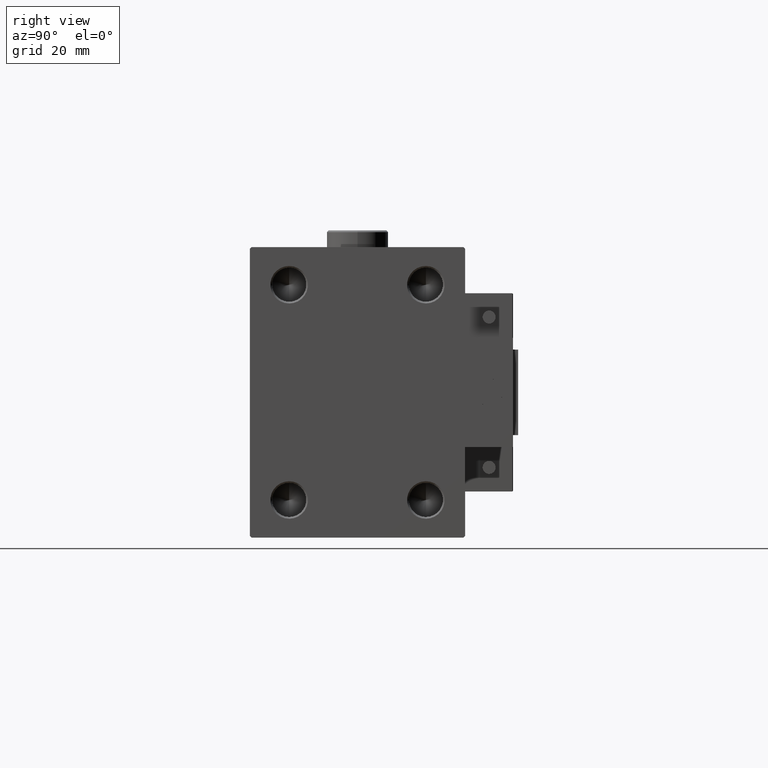
[diagram: clean part render]
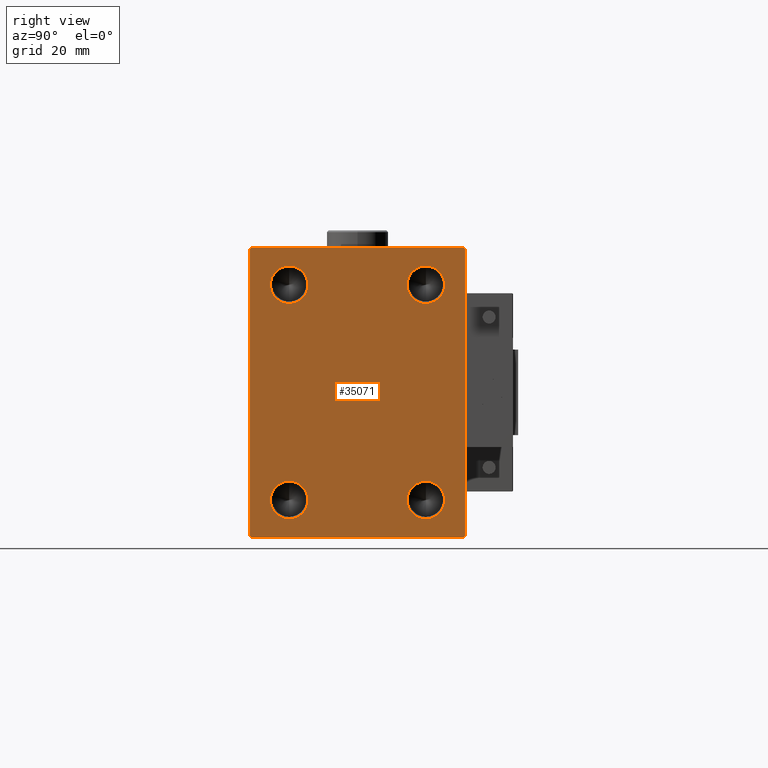
[diagram: same view with one face highlighted and labeled with its STEP entity id]
A machine part, right view. The second image highlights one B-rep face of the part: STEP entity #35071.
In plain terms, the highlighted planar face has unit normal (1, 0, 0).
Its self-contained STEP definition (entity closure, byte-faithful):
#543 = AXIS2_PLACEMENT_3D ( 'NONE', #50012, #1362, #25278 ) ;
#1117 = CARTESIAN_POINT ( 'NONE',  ( 103.0000000000000000, 36.74999999999956657, 36.75000000000058975 ) ) ;
#1249 = DIRECTION ( 'NONE',  ( 1.000000000000000000, -0.000000000000000000, -0.000000000000000000 ) ) ;
#1325 = VERTEX_POINT ( 'NONE', #2756 ) ;
#1362 = DIRECTION ( 'NONE',  ( 1.000000000000000000, -0.000000000000000000, -0.000000000000000000 ) ) ;
#1946 = EDGE_CURVE ( 'NONE', #5801, #2545, #4513, .T. ) ;
#2475 = DIRECTION ( 'NONE',  ( 1.000000000000000000, -0.000000000000000000, -0.000000000000000000 ) ) ;
#2545 = VERTEX_POINT ( 'NONE', #17121 ) ;
#2594 = FACE_BOUND ( 'NONE', #37675, .T. ) ;
#2659 = CARTESIAN_POINT ( 'NONE',  ( 103.0000000000000000, 31.50000000000001421, -42.00000000000000711 ) ) ;
#2756 = CARTESIAN_POINT ( 'NONE',  ( 103.0000000000000000, -31.50000000000000000, -42.00000000000002842 ) ) ;
#3054 = VECTOR ( 'NONE', #31547, 1000.000000000000114 ) ;
#3083 = AXIS2_PLACEMENT_3D ( 'NONE', #20191, #31618, #48619 ) ;
#3163 = DIRECTION ( 'NONE',  ( 1.000000000000000000, -0.000000000000000000, -0.000000000000000000 ) ) ;
#3430 = EDGE_CURVE ( 'NONE', #24256, #23770, #26184, .T. ) ;
#3701 = VECTOR ( 'NONE', #33518, 1000.000000000000000 ) ;
#4019 = CIRCLE ( 'NONE', #30351, 5.499999999999991118 ) ;
#4513 = CIRCLE ( 'NONE', #39322, 5.499999999999991118 ) ;
#4854 = VERTEX_POINT ( 'NONE', #44079 ) ;
#5320 = CARTESIAN_POINT ( 'NONE',  ( 103.0000000000000000, -36.74999999999936051, -36.75000000000088818 ) ) ;
#5801 = VERTEX_POINT ( 'NONE', #23597 ) ;
#6360 = ORIENTED_EDGE ( 'NONE', *, *, #1946, .F. ) ;
#6380 = DIRECTION ( 'NONE',  ( 0.000000000000000000, -1.632680918566406547E-16, 1.000000000000000000 ) ) ;
#6455 = DIRECTION ( 'NONE',  ( 0.000000000000000000, 0.000000000000000000, -1.000000000000000000 ) ) ;
#6799 = VERTEX_POINT ( 'NONE', #31096 ) ;
#7083 = EDGE_CURVE ( 'NONE', #50405, #48186, #35790, .T. ) ;
#7343 = DIRECTION ( 'NONE',  ( 0.000000000000000000, 0.000000000000000000, -1.000000000000000000 ) ) ;
#7701 = EDGE_CURVE ( 'NONE', #50673, #4854, #25103, .T. ) ;
#8054 = EDGE_CURVE ( 'NONE', #11153, #6799, #49742, .T. ) ;
#8518 = CARTESIAN_POINT ( 'NONE',  ( 103.0000000000000000, 31.00000000000000000, 42.49999999999999289 ) ) ;
#8686 = CARTESIAN_POINT ( 'NONE',  ( 103.0000000000000000, 19.99999999999999645, -31.50000000000000000 ) ) ;
#8754 = DIRECTION ( 'NONE',  ( 0.000000000000000000, 0.000000000000000000, -1.000000000000000000 ) ) ;
#8792 = EDGE_CURVE ( 'NONE', #48186, #1325, #17995, .T. ) ;
#9476 = DIRECTION ( 'NONE',  ( 0.000000000000000000, 0.000000000000000000, -1.000000000000000000 ) ) ;
#9887 = ORIENTED_EDGE ( 'NONE', *, *, #11268, .F. ) ;
#10059 = ORIENTED_EDGE ( 'NONE', *, *, #15172, .T. ) ;
#10256 = VERTEX_POINT ( 'NONE', #8518 ) ;
#10597 = CARTESIAN_POINT ( 'NONE',  ( 103.0000000000000000, 19.99999999999999645, 31.50000000000000000 ) ) ;
#10810 = FACE_OUTER_BOUND ( 'NONE', #48683, .T. ) ;
#11069 = FACE_BOUND ( 'NONE', #41954, .T. ) ;
#11153 = VERTEX_POINT ( 'NONE', #49519 ) ;
#11268 = EDGE_CURVE ( 'NONE', #43063, #33478, #4019, .T. ) ;
#11319 = FACE_BOUND ( 'NONE', #33620, .T. ) ;
#12361 = VERTEX_POINT ( 'NONE', #2659 ) ;
#12476 = AXIS2_PLACEMENT_3D ( 'NONE', #27529, #43758, #7343 ) ;
#12695 = EDGE_LOOP ( 'NONE', ( #30325, #40603 ) ) ;
#12892 = VERTEX_POINT ( 'NONE', #37262 ) ;
#13013 = LINE ( 'NONE', #45732, #51613 ) ;
#13530 = VECTOR ( 'NONE', #18551, 1000.000000000000000 ) ;
#14574 = DIRECTION ( 'NONE',  ( 0.000000000000000000, 0.000000000000000000, -1.000000000000000000 ) ) ;
#15172 = EDGE_CURVE ( 'NONE', #10256, #50405, #13013, .T. ) ;
#15480 = AXIS2_PLACEMENT_3D ( 'NONE', #20082, #44039, #23823 ) ;
#17121 = CARTESIAN_POINT ( 'NONE',  ( 103.0000000000000000, 19.99999999999999645, 36.99999999999999289 ) ) ;
#17290 = DIRECTION ( 'NONE',  ( 0.000000000000000000, 0.000000000000000000, -1.000000000000000000 ) ) ;
#17311 = EDGE_CURVE ( 'NONE', #2545, #5801, #36350, .T. ) ;
#17615 = CARTESIAN_POINT ( 'NONE',  ( 103.0000000000000000, -20.00000000000000355, 31.50000000000000000 ) ) ;
#17631 = CARTESIAN_POINT ( 'NONE',  ( 103.0000000000000000, 31.00000000000002842, -42.50000000000000711 ) ) ;
#17995 = LINE ( 'NONE', #34456, #33625 ) ;
#18551 = DIRECTION ( 'NONE',  ( -0.000000000000000000, 0.7071067811865378028, 0.7071067811865573427 ) ) ;
#18783 = DIRECTION ( 'NONE',  ( 0.000000000000000000, 0.000000000000000000, -1.000000000000000000 ) ) ;
#18924 = EDGE_CURVE ( 'NONE', #23770, #12361, #19328, .T. ) ;
#19328 = LINE ( 'NONE', #35773, #13530 ) ;
#19990 = ORIENTED_EDGE ( 'NONE', *, *, #18924, .T. ) ;
#20082 = CARTESIAN_POINT ( 'NONE',  ( 103.0000000000000000, 19.99999999999999645, -31.50000000000000000 ) ) ;
#20191 = CARTESIAN_POINT ( 'NONE',  ( 103.0000000000000000, -20.00000000000000355, -31.50000000000000000 ) ) ;
#20725 = DIRECTION ( 'NONE',  ( 0.000000000000000000, -1.000000000000000000, -1.101411730778925171E-16 ) ) ;
#21042 = ORIENTED_EDGE ( 'NONE', *, *, #21649, .F. ) ;
#21253 = DIRECTION ( 'NONE',  ( 1.000000000000000000, -0.000000000000000000, -0.000000000000000000 ) ) ;
#21523 = DIRECTION ( 'NONE',  ( -0.000000000000000000, 0.7071067811865622277, -0.7071067811865328068 ) ) ;
#21649 = EDGE_CURVE ( 'NONE', #6799, #11153, #38403, .T. ) ;
#22558 = CIRCLE ( 'NONE', #29335, 5.499999999999991118 ) ;
#23302 = CARTESIAN_POINT ( 'NONE',  ( 103.0000000000000000, -31.00000000000002842, 42.49999999999998579 ) ) ;
#23454 = CIRCLE ( 'NONE', #543, 5.499999999999991118 ) ;
#23597 = CARTESIAN_POINT ( 'NONE',  ( 103.0000000000000000, 19.99999999999999645, 26.00000000000000711 ) ) ;
#23770 = VERTEX_POINT ( 'NONE', #17631 ) ;
#23823 = DIRECTION ( 'NONE',  ( 0.000000000000000000, 0.000000000000000000, -1.000000000000000000 ) ) ;
#24256 = VERTEX_POINT ( 'NONE', #31604 ) ;
#25103 = CIRCLE ( 'NONE', #3083, 5.499999999999991118 ) ;
#25278 = DIRECTION ( 'NONE',  ( 0.000000000000000000, 0.000000000000000000, -1.000000000000000000 ) ) ;
#25703 = ORIENTED_EDGE ( 'NONE', *, *, #52062, .F. ) ;
#26033 = CARTESIAN_POINT ( 'NONE',  ( 103.0000000000000000, 19.99999999999999645, 31.50000000000000000 ) ) ;
#26184 = LINE ( 'NONE', #34127, #41065 ) ;
#26423 = ORIENTED_EDGE ( 'NONE', *, *, #8054, .F. ) ;
#27529 = CARTESIAN_POINT ( 'NONE',  ( 103.0000000000000000, 0.000000000000000000, 0.000000000000000000 ) ) ;
#27605 = ORIENTED_EDGE ( 'NONE', *, *, #7083, .T. ) ;
#27606 = EDGE_CURVE ( 'NONE', #12892, #10256, #48968, .T. ) ;
#28890 = EDGE_CURVE ( 'NONE', #12361, #12892, #34799, .T. ) ;
#29335 = AXIS2_PLACEMENT_3D ( 'NONE', #41734, #34022, #17290 ) ;
#30325 = ORIENTED_EDGE ( 'NONE', *, *, #37266, .F. ) ;
#30351 = AXIS2_PLACEMENT_3D ( 'NONE', #17615, #2475, #6455 ) ;
#31096 = CARTESIAN_POINT ( 'NONE',  ( 103.0000000000000000, 19.99999999999999645, -26.00000000000000711 ) ) ;
#31508 = PLANE ( 'NONE',  #12476 ) ;
#31547 = DIRECTION ( 'NONE',  ( 0.000000000000000000, -0.7071067811865376918, -0.7071067811865573427 ) ) ;
#31604 = CARTESIAN_POINT ( 'NONE',  ( 103.0000000000000000, -31.00000000000000000, -42.50000000000000711 ) ) ;
#31618 = DIRECTION ( 'NONE',  ( 1.000000000000000000, -0.000000000000000000, -0.000000000000000000 ) ) ;
#32180 = EDGE_CURVE ( 'NONE', #1325, #24256, #37447, .T. ) ;
#33478 = VERTEX_POINT ( 'NONE', #36388 ) ;
#33518 = DIRECTION ( 'NONE',  ( -0.000000000000000000, -0.7071067811865573427, 0.7071067811865378028 ) ) ;
#33585 = AXIS2_PLACEMENT_3D ( 'NONE', #8686, #1249, #9476 ) ;
#33620 = EDGE_LOOP ( 'NONE', ( #21042, #26423 ) ) ;
#33625 = VECTOR ( 'NONE', #18783, 1000.000000000000000 ) ;
#34022 = DIRECTION ( 'NONE',  ( 1.000000000000000000, -0.000000000000000000, -0.000000000000000000 ) ) ;
#34127 = CARTESIAN_POINT ( 'NONE',  ( 103.0000000000000000, -31.50000000000000000, -42.50000000000000711 ) ) ;
#34141 = CARTESIAN_POINT ( 'NONE',  ( 103.0000000000000000, -20.00000000000000355, -36.99999999999999289 ) ) ;
#34456 = CARTESIAN_POINT ( 'NONE',  ( 103.0000000000000000, -31.50000000000000000, 42.49999999999998579 ) ) ;
#34799 = LINE ( 'NONE', #42787, #42822 ) ;
#35071 = ADVANCED_FACE ( 'NONE', ( #2594, #11069, #39479, #11319, #10810 ), #31508, .T. ) ;
#35759 = ORIENTED_EDGE ( 'NONE', *, *, #28890, .T. ) ;
#35773 = CARTESIAN_POINT ( 'NONE',  ( 103.0000000000000000, 36.75000000000045475, -36.74999999999943867 ) ) ;
#35790 = LINE ( 'NONE', #48042, #3054 ) ;
#36350 = CIRCLE ( 'NONE', #52498, 5.499999999999991118 ) ;
#36388 = CARTESIAN_POINT ( 'NONE',  ( 103.0000000000000000, -20.00000000000000355, 26.00000000000000711 ) ) ;
#37262 = CARTESIAN_POINT ( 'NONE',  ( 103.0000000000000000, 31.50000000000000000, 42.00000000000000711 ) ) ;
#37266 = EDGE_CURVE ( 'NONE', #4854, #50673, #23454, .T. ) ;
#37447 = LINE ( 'NONE', #5320, #47197 ) ;
#37675 = EDGE_LOOP ( 'NONE', ( #52423, #6360 ) ) ;
#38403 = CIRCLE ( 'NONE', #15480, 5.499999999999991118 ) ;
#39322 = AXIS2_PLACEMENT_3D ( 'NONE', #10597, #3163, #14574 ) ;
#39479 = FACE_BOUND ( 'NONE', #12695, .T. ) ;
#40603 = ORIENTED_EDGE ( 'NONE', *, *, #7701, .F. ) ;
#41065 = VECTOR ( 'NONE', #46120, 1000.000000000000000 ) ;
#41661 = ORIENTED_EDGE ( 'NONE', *, *, #3430, .T. ) ;
#41734 = CARTESIAN_POINT ( 'NONE',  ( 103.0000000000000000, -20.00000000000000355, 31.50000000000000000 ) ) ;
#41954 = EDGE_LOOP ( 'NONE', ( #9887, #25703 ) ) ;
#42787 = CARTESIAN_POINT ( 'NONE',  ( 103.0000000000000000, 31.50000000000001421, -42.50000000000000711 ) ) ;
#42822 = VECTOR ( 'NONE', #6380, 1000.000000000000000 ) ;
#43063 = VERTEX_POINT ( 'NONE', #45774 ) ;
#43758 = DIRECTION ( 'NONE',  ( 1.000000000000000000, 0.000000000000000000, 0.000000000000000000 ) ) ;
#44039 = DIRECTION ( 'NONE',  ( 1.000000000000000000, -0.000000000000000000, -0.000000000000000000 ) ) ;
#44079 = CARTESIAN_POINT ( 'NONE',  ( 103.0000000000000000, -20.00000000000000355, -26.00000000000000711 ) ) ;
#45732 = CARTESIAN_POINT ( 'NONE',  ( 103.0000000000000000, 31.50000000000000000, 42.49999999999999289 ) ) ;
#45774 = CARTESIAN_POINT ( 'NONE',  ( 103.0000000000000000, -20.00000000000000355, 36.99999999999999289 ) ) ;
#46120 = DIRECTION ( 'NONE',  ( 0.000000000000000000, 1.000000000000000000, 0.000000000000000000 ) ) ;
#47197 = VECTOR ( 'NONE', #21523, 1000.000000000000000 ) ;
#48042 = CARTESIAN_POINT ( 'NONE',  ( 103.0000000000000000, -36.75000000000044054, 36.74999999999941735 ) ) ;
#48186 = VERTEX_POINT ( 'NONE', #48801 ) ;
#48536 = ORIENTED_EDGE ( 'NONE', *, *, #8792, .T. ) ;
#48619 = DIRECTION ( 'NONE',  ( 0.000000000000000000, 0.000000000000000000, -1.000000000000000000 ) ) ;
#48683 = EDGE_LOOP ( 'NONE', ( #10059, #27605, #48536, #51875, #41661, #19990, #35759, #50804 ) ) ;
#48801 = CARTESIAN_POINT ( 'NONE',  ( 103.0000000000000000, -31.50000000000000000, 42.00000000000000000 ) ) ;
#48968 = LINE ( 'NONE', #1117, #3701 ) ;
#49519 = CARTESIAN_POINT ( 'NONE',  ( 103.0000000000000000, 19.99999999999999645, -36.99999999999999289 ) ) ;
#49742 = CIRCLE ( 'NONE', #33585, 5.499999999999991118 ) ;
#50012 = CARTESIAN_POINT ( 'NONE',  ( 103.0000000000000000, -20.00000000000000355, -31.50000000000000000 ) ) ;
#50405 = VERTEX_POINT ( 'NONE', #23302 ) ;
#50673 = VERTEX_POINT ( 'NONE', #34141 ) ;
#50804 = ORIENTED_EDGE ( 'NONE', *, *, #27606, .T. ) ;
#51613 = VECTOR ( 'NONE', #20725, 1000.000000000000000 ) ;
#51875 = ORIENTED_EDGE ( 'NONE', *, *, #32180, .T. ) ;
#52062 = EDGE_CURVE ( 'NONE', #33478, #43063, #22558, .T. ) ;
#52423 = ORIENTED_EDGE ( 'NONE', *, *, #17311, .F. ) ;
#52498 = AXIS2_PLACEMENT_3D ( 'NONE', #26033, #21253, #8754 ) ;